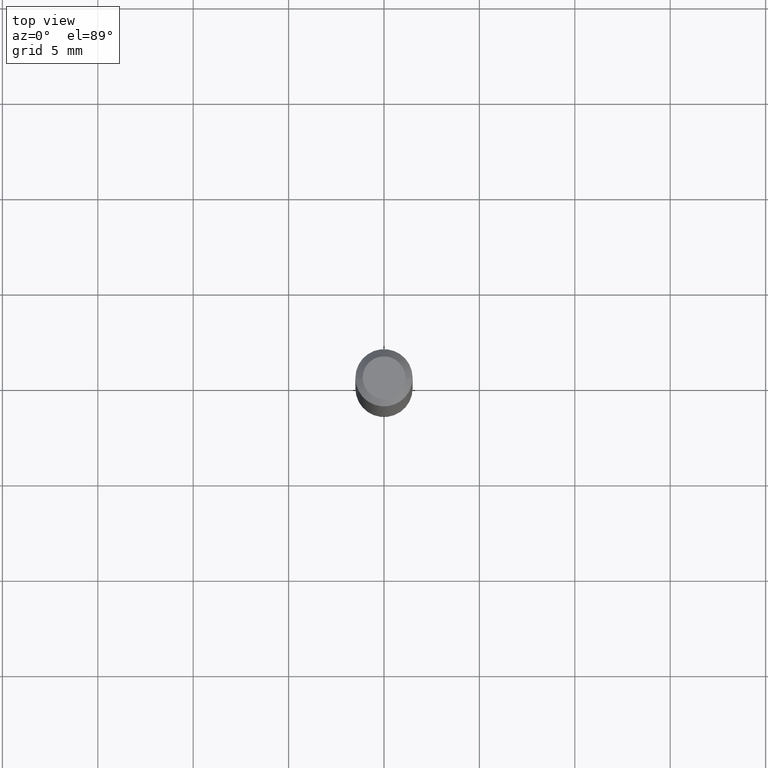
[diagram: clean part render]
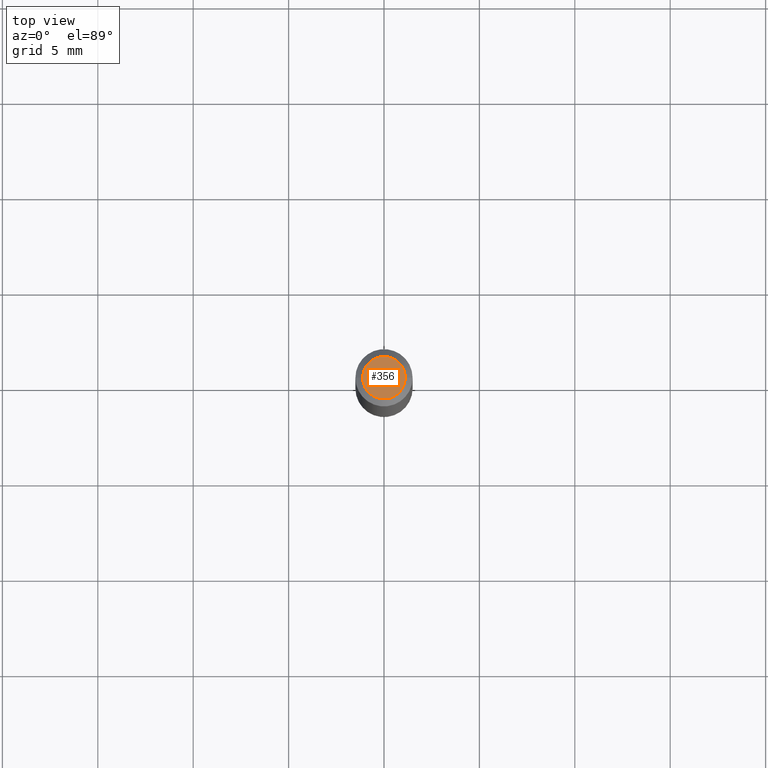
[diagram: same view with one face highlighted and labeled with its STEP entity id]
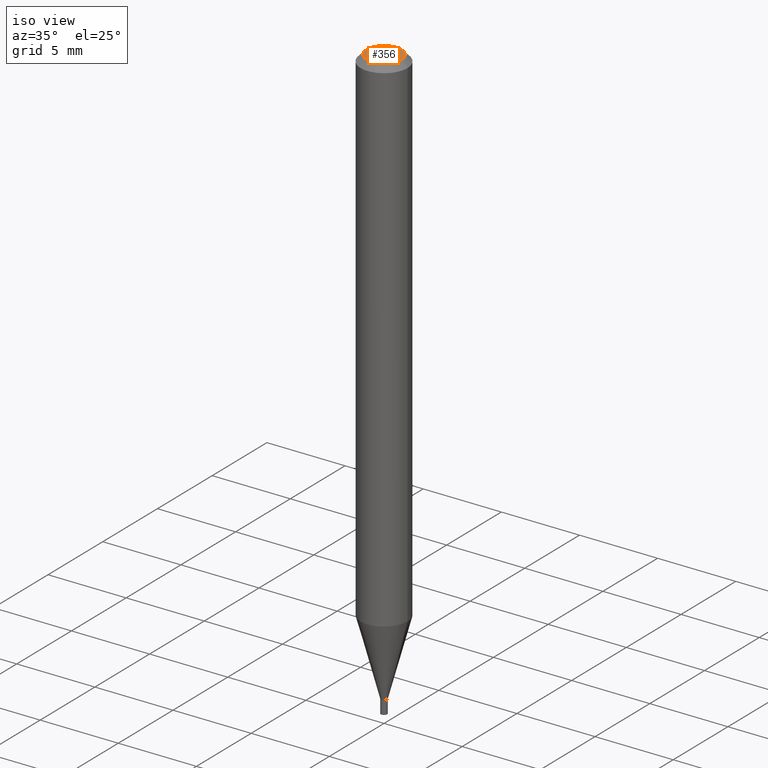
[diagram: same view with one face highlighted and labeled with its STEP entity id]
A machine part, top view. The second image highlights one B-rep face of the part: STEP entity #356.
A second angle (iso view) of the same face is appended — the face is thin or edge-on in the first view.
In plain terms, the highlighted planar face has unit normal (0, -0, -1).
Its self-contained STEP definition (entity closure, byte-faithful):
#6 = EDGE_CURVE ( 'NONE', #281, #309, #338, .T. ) ;
#9 = FACE_OUTER_BOUND ( 'NONE', #226, .T. ) ;
#52 = ORIENTED_EDGE ( 'NONE', *, *, #6, .T. ) ;
#64 = DIRECTION ( 'NONE',  ( 1.000000000000000000, -6.982962677686265922E-15, 4.888540261209747396E-29 ) ) ;
#103 = CARTESIAN_POINT ( 'NONE',  ( 2.842653332627866660E-45, -4.058555577796679728E-31, -1.162416517208545723E-16 ) ) ;
#105 = DIRECTION ( 'NONE',  ( -2.445468806185136597E-29, 3.491481338843145583E-15, 1.000000000000000000 ) ) ;
#113 = AXIS2_PLACEMENT_3D ( 'NONE', #153, #119, #221 ) ;
#119 = DIRECTION ( 'NONE',  ( -2.445468806185136597E-29, 3.491481338843145583E-15, 1.000000000000000000 ) ) ;
#153 = CARTESIAN_POINT ( 'NONE',  ( 2.842653332627866660E-45, -4.058555577796679728E-31, -1.162416517208545723E-16 ) ) ;
#177 = AXIS2_PLACEMENT_3D ( 'NONE', #190, #322, #196 ) ;
#190 = CARTESIAN_POINT ( 'NONE',  ( 3.075995059520799729E-16, 0.04404999999999999888, -2.119205788364678519E-16 ) ) ;
#196 = DIRECTION ( 'NONE',  ( -1.000000000000000000, 6.982962677686265922E-15, -4.876176775795935793E-29 ) ) ;
#221 = DIRECTION ( 'NONE',  ( 1.000000000000000000, -6.982962677686265922E-15, 4.888540261209747396E-29 ) ) ;
#226 = EDGE_LOOP ( 'NONE', ( #369, #52 ) ) ;
#245 = AXIS2_PLACEMENT_3D ( 'NONE', #103, #105, #64 ) ;
#250 = CARTESIAN_POINT ( 'NONE',  ( -0.04404999999999999888, 3.337856159934032167E-16, -1.162416517208568157E-16 ) ) ;
#281 = VERTEX_POINT ( 'NONE', #389 ) ;
#309 = VERTEX_POINT ( 'NONE', #250 ) ;
#322 = DIRECTION ( 'NONE',  ( 2.438088387897960049E-29, -3.491481338843145188E-15, -1.000000000000000000 ) ) ;
#338 = CIRCLE ( 'NONE', #245, 0.04404999999999999888 ) ;
#356 = ADVANCED_FACE ( 'NONE', ( #9 ), #447, .F. ) ;
#369 = ORIENTED_EDGE ( 'NONE', *, *, #391, .T. ) ;
#389 = CARTESIAN_POINT ( 'NONE',  ( 0.04404999999999999888, -3.798447818264462051E-16, -1.162416517208521811E-16 ) ) ;
#391 = EDGE_CURVE ( 'NONE', #309, #281, #422, .T. ) ;
#422 = CIRCLE ( 'NONE', #113, 0.04404999999999999888 ) ;
#447 = PLANE ( 'NONE',  #177 ) ;